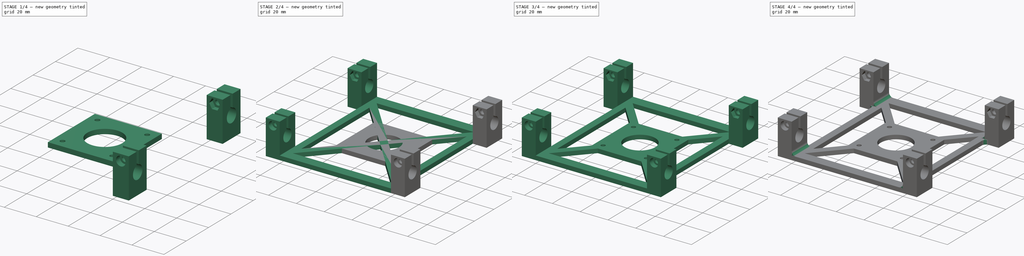
[diagram: build sequence overview — one tinted view per stage of 4, left to right]
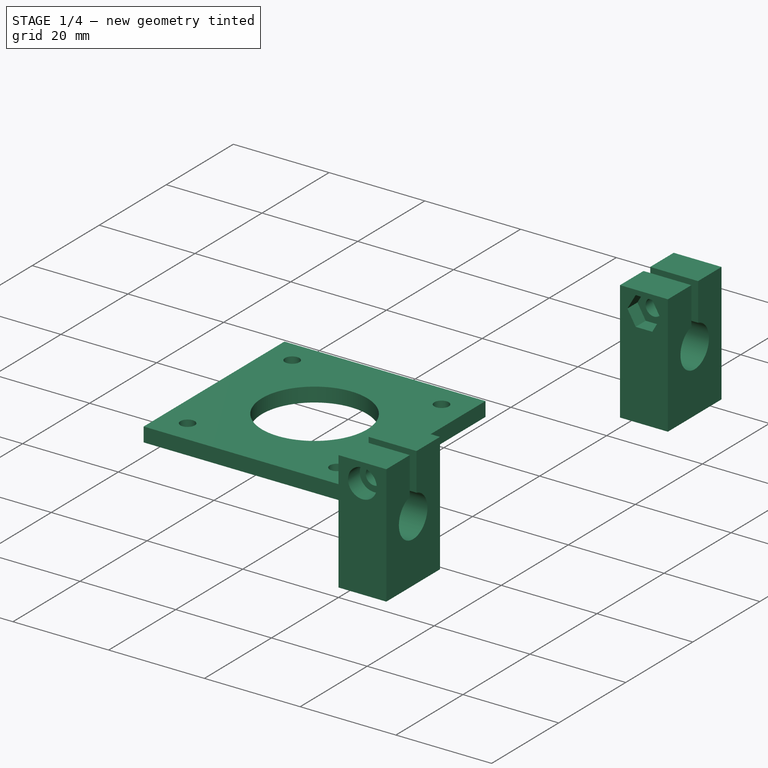
[diagram: stage 1 of 4 — iso view after this stage's code; geometry added in this stage tinted green]
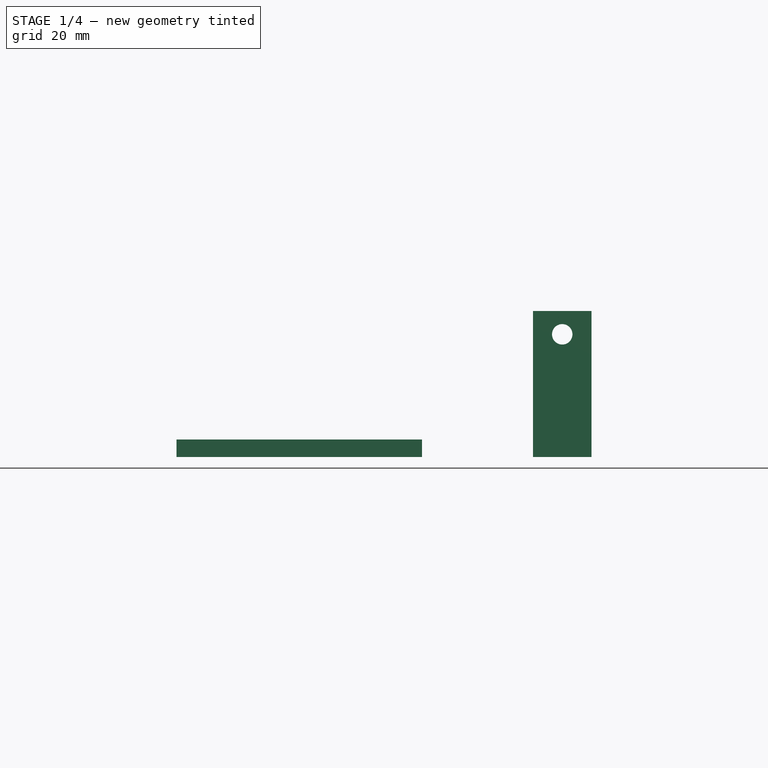
[diagram: stage 1 of 4 — front view after this stage's code; geometry added in this stage tinted green]
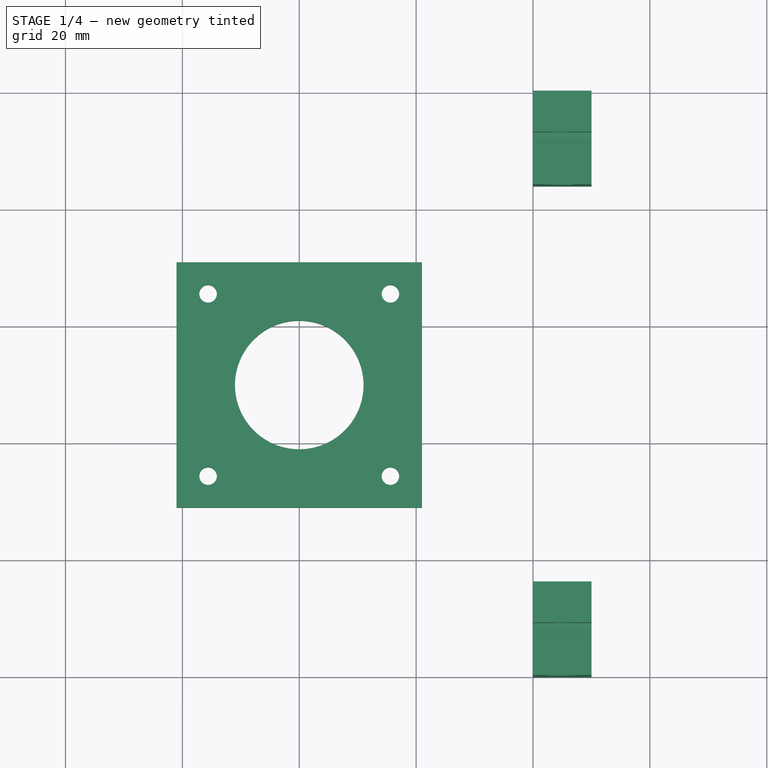
[diagram: stage 1 of 4 — top view after this stage's code; geometry added in this stage tinted green]
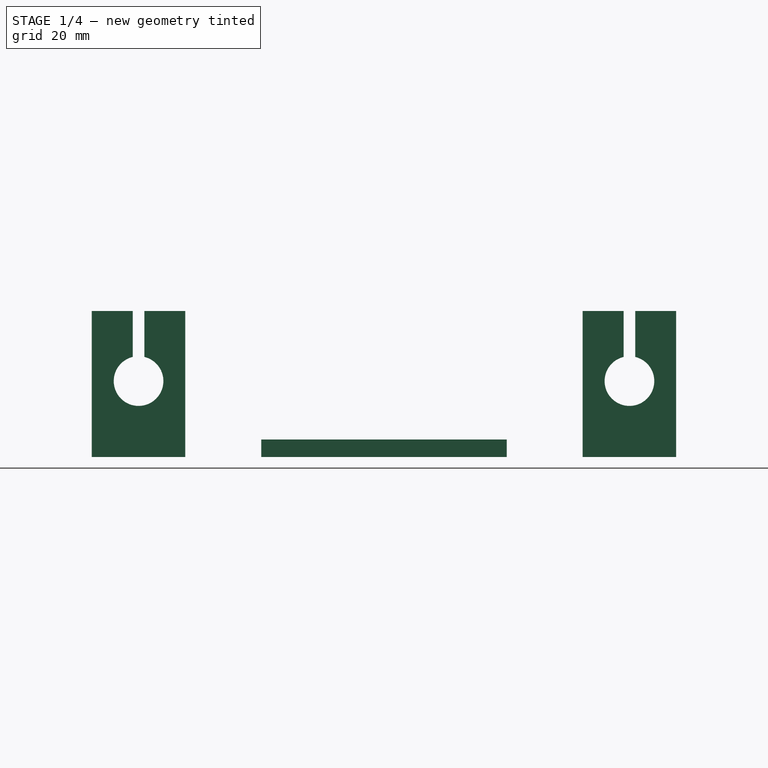
[diagram: stage 1 of 4 — right view after this stage's code; geometry added in this stage tinted green]
FCSTD DOCUMENT
Label: BackPlate2
objects: PartDesign::Pocket×4, PartDesign::Pad×3, Sketcher::SketchObject×2, Part::MultiFuse×2, Part::Fillet×2, Part::Cut×1
note: 17 computed .brp shape members not serialized (recipe doc carries the construction recipe); baked Part::Feature solids carry a one-line shape summary decoded from their .brp

FEATURE [PartDesign::Pocket] Pocket002  label="Clamp003"
  Length = 3
  Placement = pos=(80,16,0) rot=(0.707107,0,0.707107;3.14159rad)
  Type = 0
FEATURE [PartDesign::Pocket] Pocket003  label="Clamp004"
  Length = 3
  Placement = pos=(90,84,0) rot=(0,-1,0;1.5708rad)
  Type = 0
FEATURE [PartDesign::Pad] Pad
  Length = 3
  MirroredExtent = false
  Placement = pos=(40,50,0) rot=(0,0,1;0rad)
  Sketch = -> Sketch
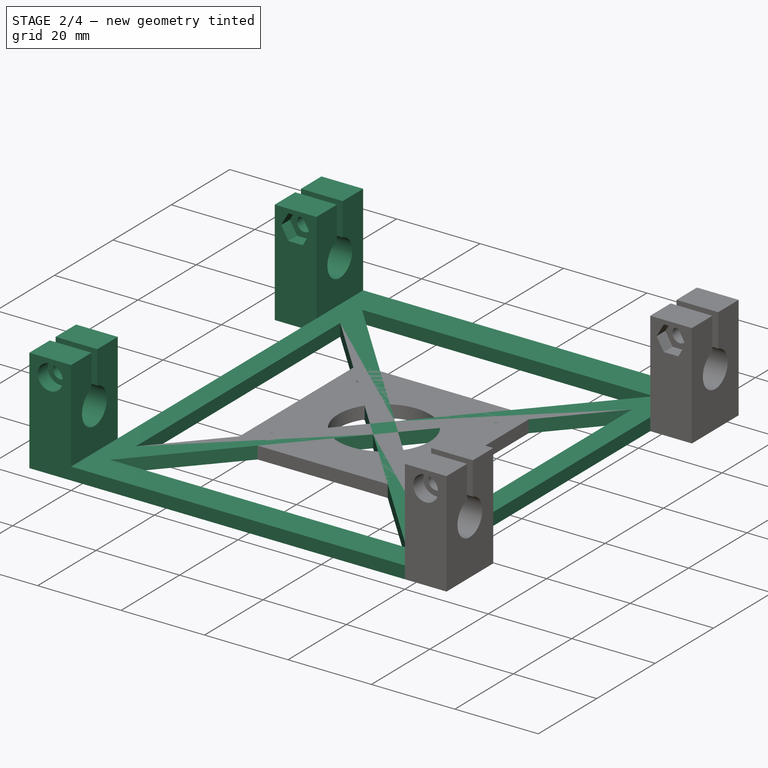
[diagram: stage 2 of 4 — iso view after this stage's code; geometry added in this stage tinted green]
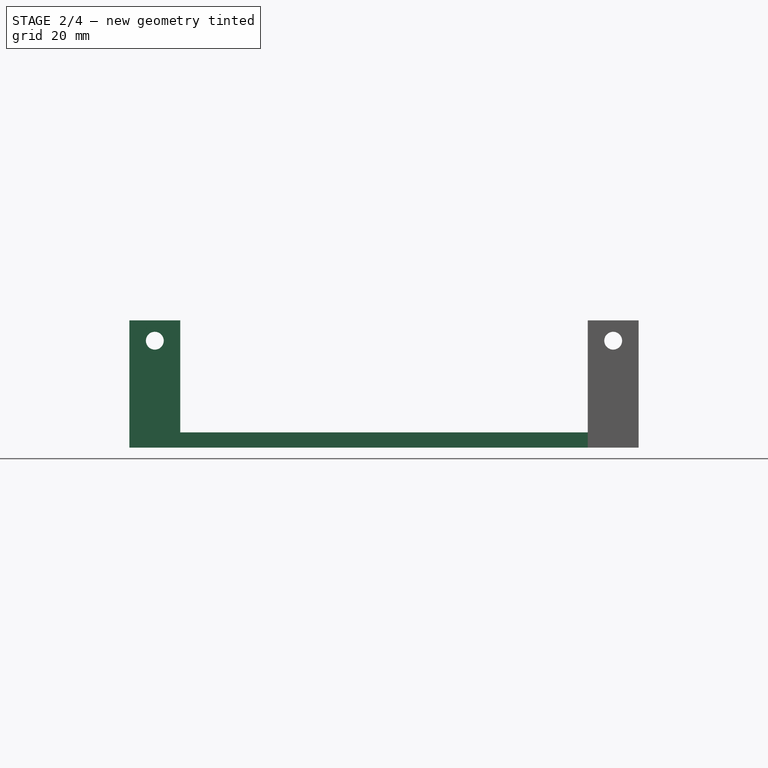
[diagram: stage 2 of 4 — front view after this stage's code; geometry added in this stage tinted green]
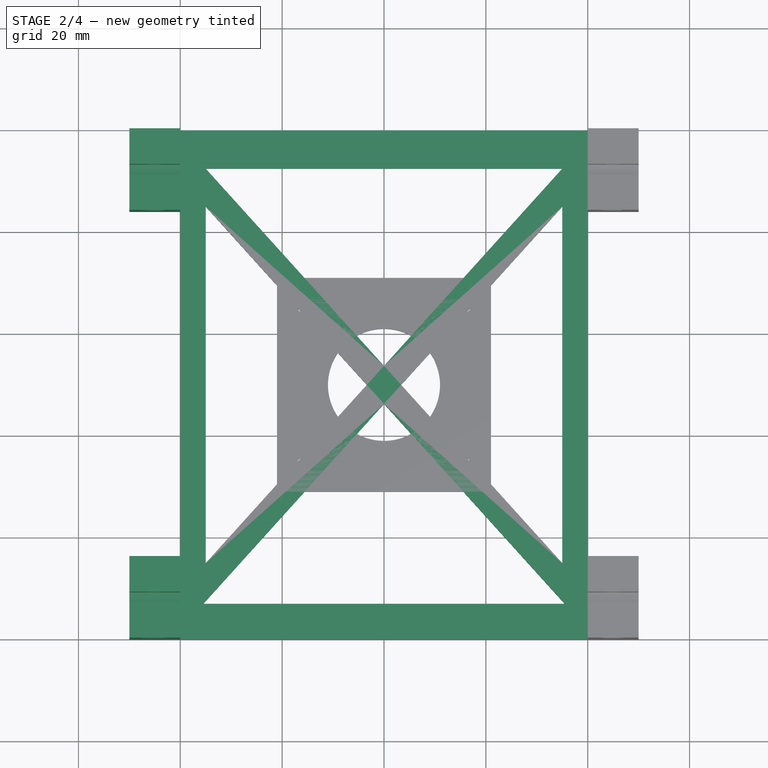
[diagram: stage 2 of 4 — top view after this stage's code; geometry added in this stage tinted green]
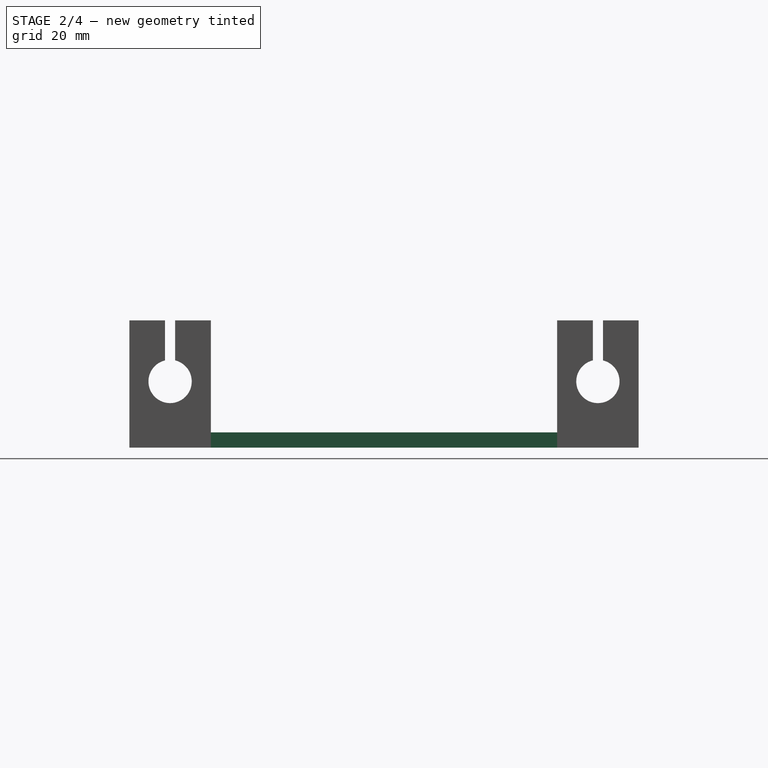
[diagram: stage 2 of 4 — right view after this stage's code; geometry added in this stage tinted green]
FEATURE [PartDesign::Pad] Pad005
  Length = 3
  MirroredExtent = false
  Sketch = -> Sketch
FEATURE [PartDesign::Pocket] Pocket  label="Clamp1"
  Length = 3
  Placement = pos=(0,84,0) rot=(0,-1,0;1.5708rad)
  Type = 0
FEATURE [PartDesign::Pocket] Pocket001  label="Clamp002"
  Length = 3
  Placement = pos=(-10,16,0) rot=(0.707107,0,0.707107;3.14159rad)
  Type = 0
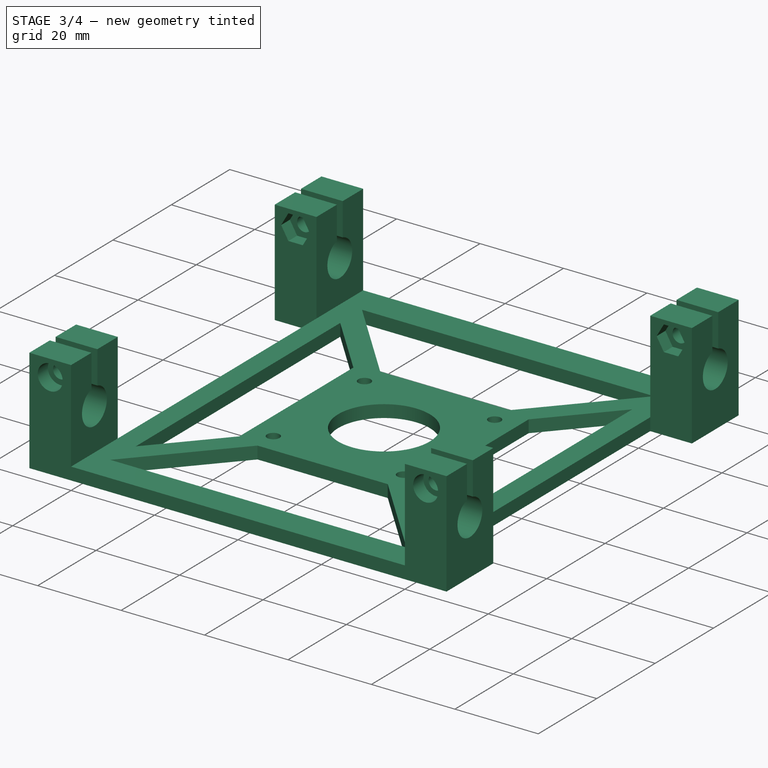
[diagram: stage 3 of 4 — iso view after this stage's code; geometry added in this stage tinted green]
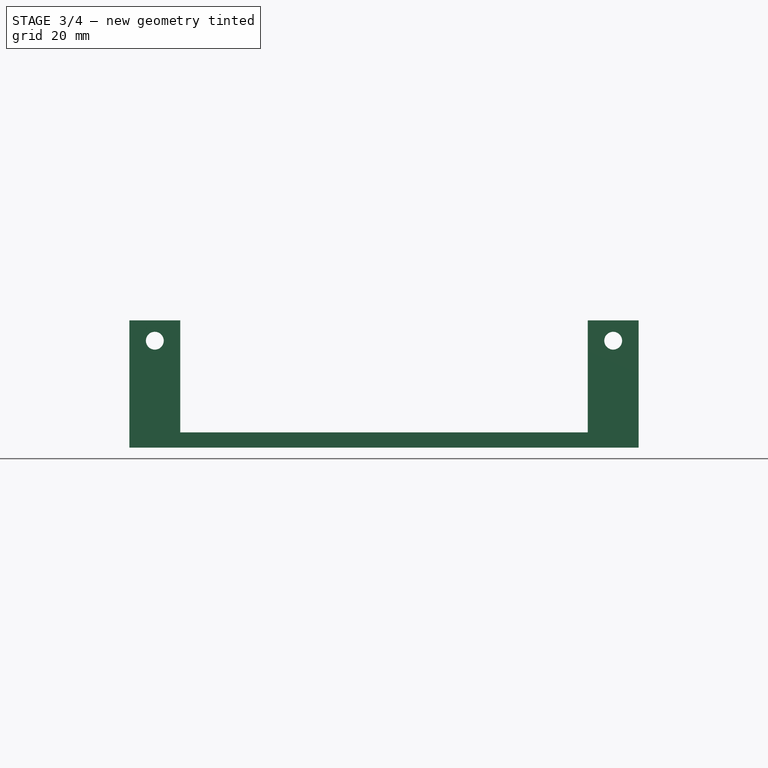
[diagram: stage 3 of 4 — front view after this stage's code; geometry added in this stage tinted green]
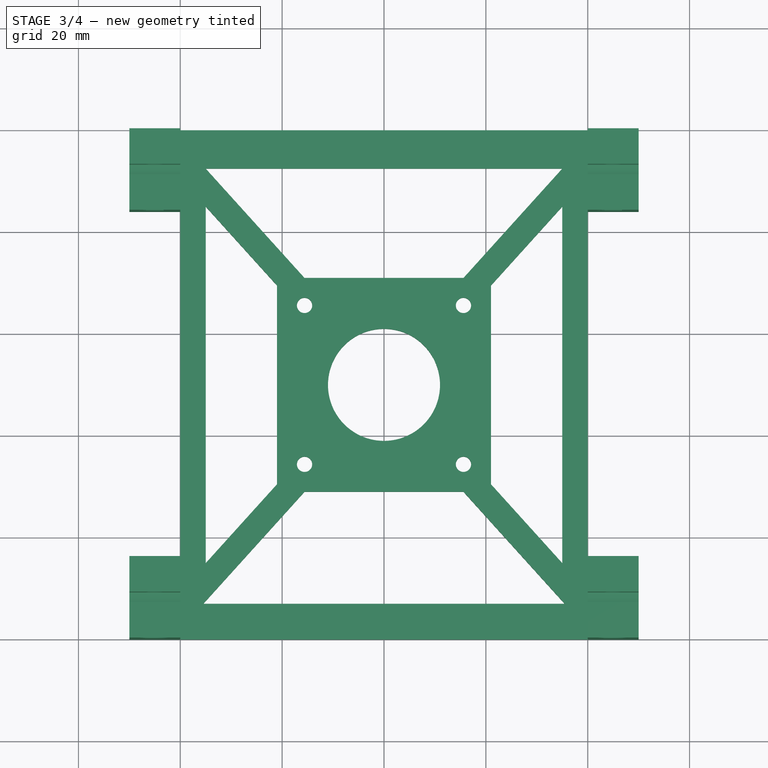
[diagram: stage 3 of 4 — top view after this stage's code; geometry added in this stage tinted green]
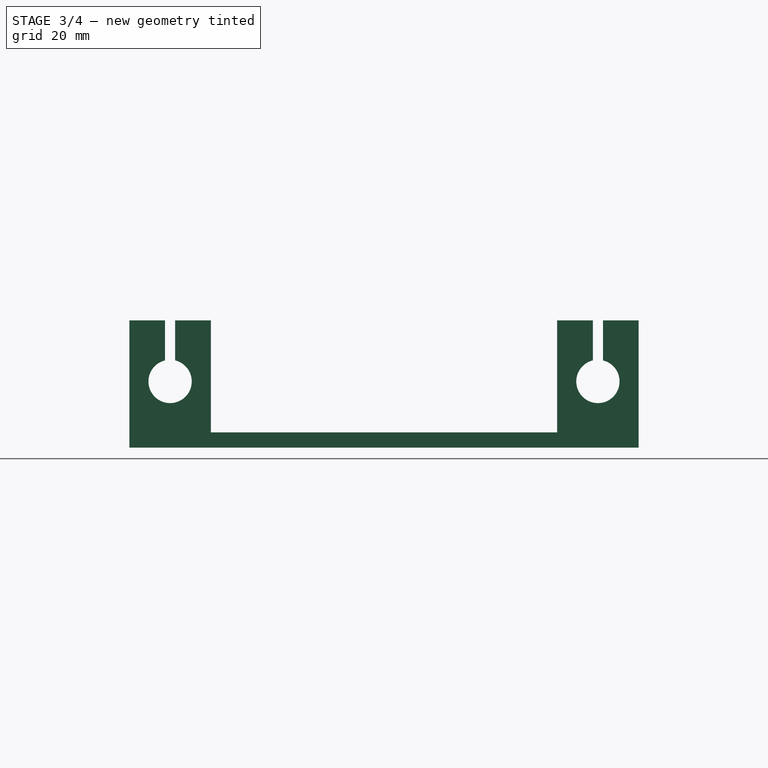
[diagram: stage 3 of 4 — right view after this stage's code; geometry added in this stage tinted green]
FEATURE [Sketcher::SketchObject] Sketch
  sketch-geometry (23):
    g0: LineSegment StartX=0 StartY=0 StartZ=0 EndX=0 EndY=100 EndZ=0
    g1: LineSegment StartX=0 StartY=100 StartZ=0 EndX=80 EndY=100 EndZ=0
    g2: LineSegment StartX=80 StartY=100 StartZ=0 EndX=80 EndY=0 EndZ=0
    g3: LineSegment StartX=80 StartY=0 StartZ=0 EndX=0 EndY=0 EndZ=0
    g4: LineSegment StartX=5 StartY=85 StartZ=0 EndX=36.6304 EndY=50 EndZ=0
    g5: LineSegment StartX=36.6304 StartY=50 StartZ=0 EndX=5 EndY=15 EndZ=0
    g6: LineSegment StartX=5 StartY=15 StartZ=0 EndX=5 EndY=85 EndZ=0
    g7: LineSegment StartX=5 StartY=92.4572 StartZ=0 EndX=40 EndY=53.7286 EndZ=0
    g8: LineSegment StartX=40 StartY=53.7286 StartZ=0 EndX=75 EndY=92.4572 EndZ=0
    g9: LineSegment StartX=75 StartY=92.4572 StartZ=0 EndX=5 EndY=92.4572 EndZ=0
    g10: LineSegment StartX=75 StartY=85 StartZ=0 EndX=75 EndY=15 EndZ=0
    g11: LineSegment StartX=75 StartY=15 StartZ=0 EndX=43.3696 EndY=50 EndZ=0
    g12: LineSegment StartX=43.3696 StartY=50 StartZ=0 EndX=75 EndY=85 EndZ=0
    g13: LineSegment StartX=75.4905 StartY=7 StartZ=0 EndX=40 EndY=46.2714 EndZ=0
    g14: LineSegment StartX=40 StartY=46.2714 StartZ=0 EndX=4.50949 EndY=7 EndZ=0
    g15: LineSegment StartX=4.50949 StartY=7 StartZ=0 EndX=75.4905 EndY=7 EndZ=0
    g16: LineSegment [constr] StartX=36.6304 StartY=50 StartZ=0 EndX=40 EndY=53.7286 EndZ=0
    g17: LineSegment [constr] StartX=36.6304 StartY=50 StartZ=0 EndX=40 EndY=46.2714 EndZ=0
    g18: LineSegment [constr] StartX=40 StartY=53.7286 StartZ=0 EndX=43.3696 EndY=50 EndZ=0
    g19: LineSegment [constr] StartX=75 StartY=92.4572 StartZ=0 EndX=89.0744 EndY=108.031 EndZ=0
    g20: LineSegment [constr] StartX=89.0744 StartY=108.031 StartZ=0 EndX=92.7839 EndY=104.679 EndZ=0
    g21: LineSegment [constr] StartX=92.7839 StartY=104.679 StartZ=0 EndX=75 EndY=85 EndZ=0
    g22: LineSegment [constr] StartX=75 StartY=92.4572 StartZ=0 EndX=75 EndY=85 EndZ=0
  constraints (64):
    c: Vertical(g0)
    c: Coincident(g0,g1)
    c: Horizontal(g1)
    c: Coincident(g1,g2)
    c: Vertical(g2)
    c: Coincident(g2,g3)
    c: Horizontal(g3)
    c: Coincident(g3,g0)
    c: DistanceX(g0) = 0
    c: DistanceY(g0) = 0
    c: DistanceY(g0) = 100
    c: DistanceX(g3) = -80
    c: Coincident(g4,g5)
    c: Coincident(g5,g6)
    c: Vertical(g6)
    c: Coincident(g6,g4)
    c: DistanceX(g0,g5) = 5
    c: Coincident(g7,g8)
    c: Coincident(g8,g9)
    c: Coincident(g9,g7)
    c: Horizontal(g9)
    c: Vertical(g10)
    c: Coincident(g10,g11)
    c: Coincident(g11,g12)
    c: Coincident(g12,g10)
    c: DistanceX(g10,g1) = 5
    c: Coincident(g13,g14)
    c: Coincident(g14,g15)
    c: Horizontal(g15)
    c: Coincident(g13,g15)
    c: DistanceY(g13,g2) = -7
    c: DistanceY(g4) = 50
    c: DistanceY(g11) = 50
    c: DistanceX(g7) = 40
    c: DistanceX(g13) = 40
    c: Distance(g6) = 70
    c: Parallel(g4,g7)
    c: Parallel(g7,g13)
    c: Parallel(g13,g11)
    c: Parallel(g14,g5)
    c: Parallel(g5,g8)
    c: Parallel(g8,g12)
    c: Coincident(g7,g16)
    c: Coincident(g16,g4)
    c: Coincident(g4,g17)
    c: Coincident(g17,g13)
    c: Parallel(g4,g17)
    c: Parallel(g16,g8)
    c: Coincident(g11,g18)
    c: Coincident(g18,g7)
    c: Parallel(g18,g7)
    c: Coincident(g19,g20)
    c: Coincident(g20,g21)
    c: Coincident(g21,g10)
    c: Coincident(g19,g8)
    c: Parallel(g19,g8)
    c: Parallel(g19,g21)
    c: Perpendicular(g19,g20)
    c: Equal(g17,g18)
    c: Distance(g20) = 5
    c: Distance(g21) = 26.5238
    c: Vertical(g22)
    c: Coincident(g22,g10)
    c: Coincident(g22,g8)
FEATURE [Sketcher::SketchObject] Sketch004
  sketch-geometry (5):
    g0: LineSegment StartX=19 StartY=71 StartZ=0 EndX=61 EndY=71 EndZ=0
    g1: LineSegment StartX=61 StartY=71 StartZ=0 EndX=61 EndY=29 EndZ=0
    g2: LineSegment StartX=19 StartY=29 StartZ=0 EndX=19 EndY=71 EndZ=0
    g3: LineSegment StartX=19 StartY=29 StartZ=0 EndX=40 EndY=29 EndZ=0
    g4: LineSegment StartX=40 StartY=29 StartZ=0 EndX=61 EndY=29 EndZ=0
  constraints (15):
    c: Coincident(g0,g1)
    c: Coincident(g2,g0)
    c: Horizontal(g0)
    c: Vertical(g1)
    c: Vertical(g2)
    c: Horizontal(g3)
    c: Coincident(g3,g4)
    c: Horizontal(g4)
    c: Equal(g4,g3)
    c: Coincident(g1,g4)
    c: Coincident(g3,g2)
    c: Equal(g0,g1)
    c: DistanceX(g0) = 42
    c: DistanceX(g3) = 40
    c: DistanceY(g3) = 29
FEATURE [PartDesign::Pad] Pad004
  Length = 10
  MirroredExtent = false
  Sketch = -> Sketch004
FEATURE [Part::MultiFuse] Fusion
  Shapes = -> [Pocket,Pocket002,Pocket001,Pocket003,Pad005]
FEATURE [Part::Cut] Cut
  Base = -> Fusion
  Tool = -> Pad004
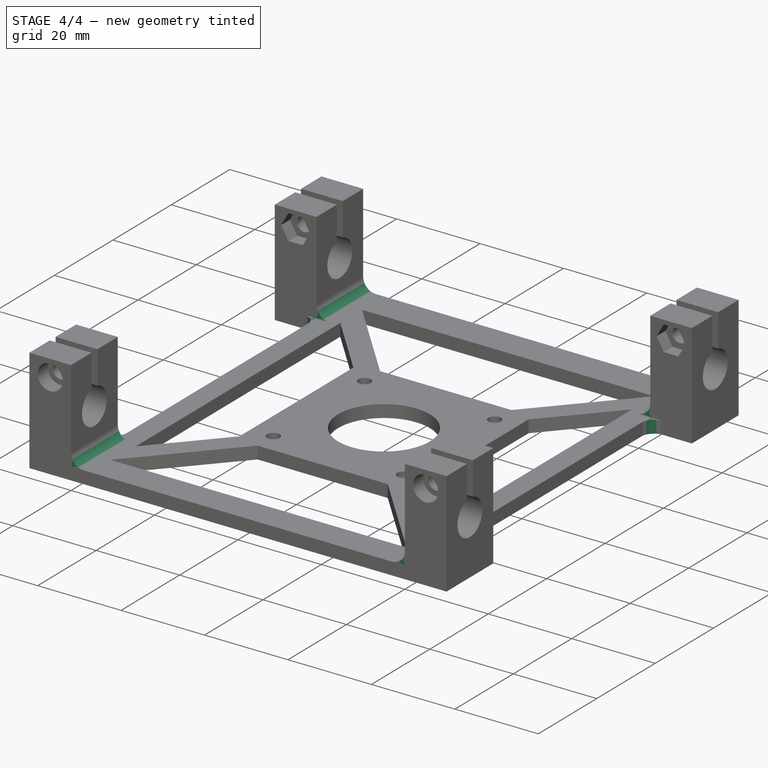
[diagram: stage 4 of 4 — iso view after this stage's code; geometry added in this stage tinted green]
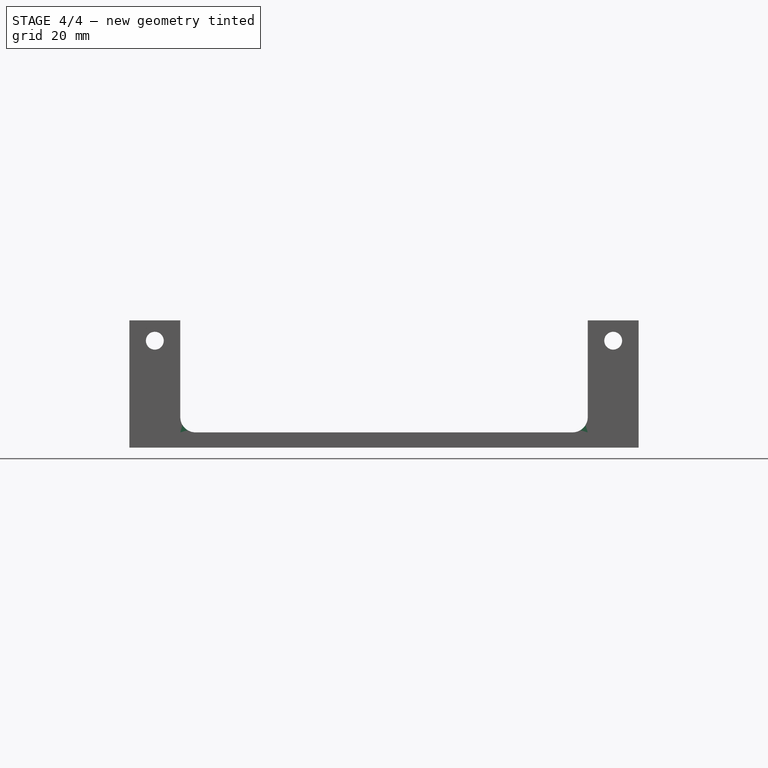
[diagram: stage 4 of 4 — front view after this stage's code; geometry added in this stage tinted green]
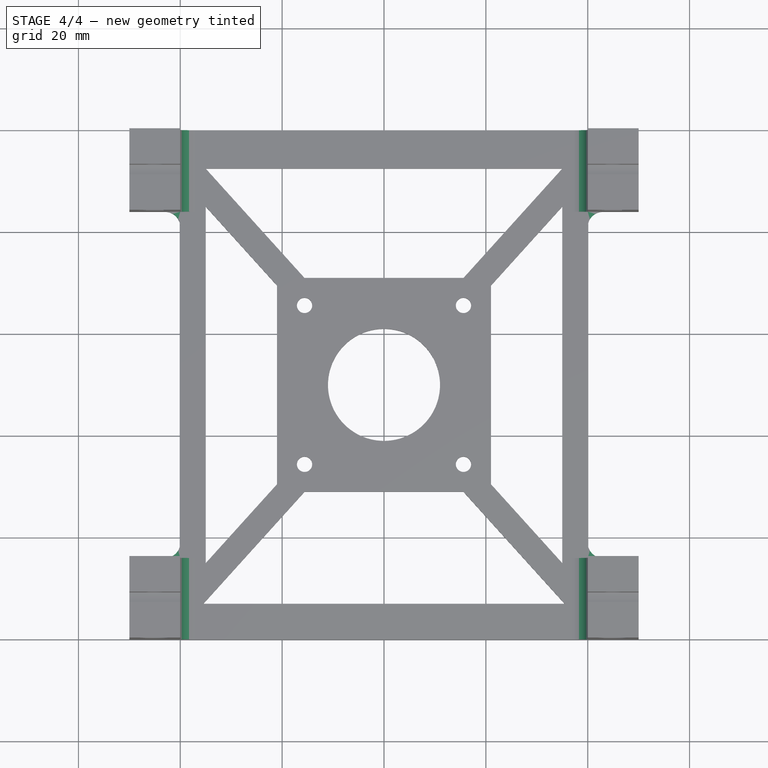
[diagram: stage 4 of 4 — top view after this stage's code; geometry added in this stage tinted green]
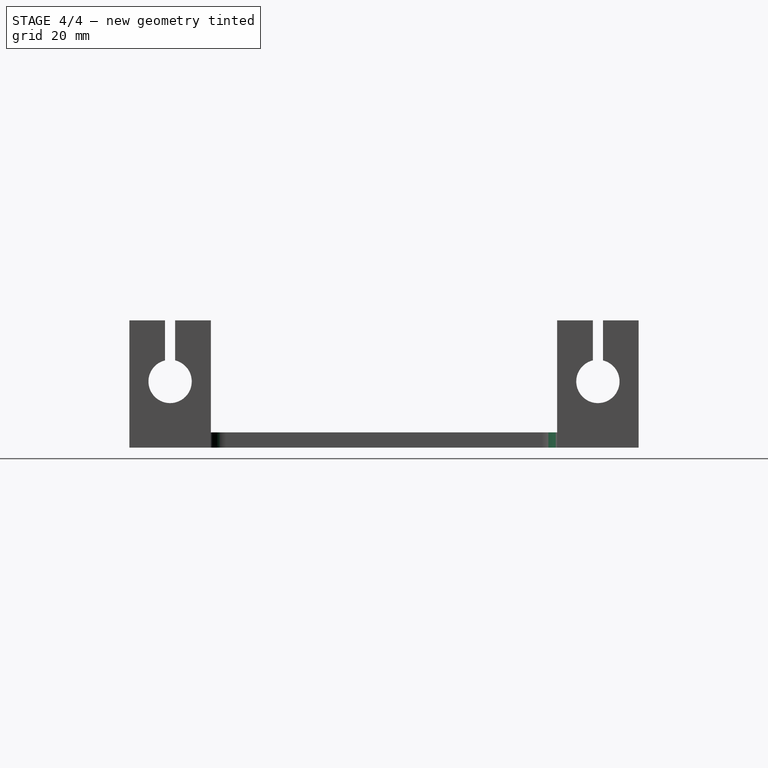
[diagram: stage 4 of 4 — right view after this stage's code; geometry added in this stage tinted green]
FEATURE [Part::MultiFuse] Fusion001
  Shapes = -> [Pad,Cut]
FEATURE [Part::Fillet] Fillet
  Base = -> Fusion001
  Edges = 4 edges r=3: [Edge70,Edge151,Edge152,Edge153]
FEATURE [Part::Fillet] Fillet001
  Base = -> Fillet
  Edges = 4 edges r=10: [Edge44,Edge133,Edge169,Edge187]
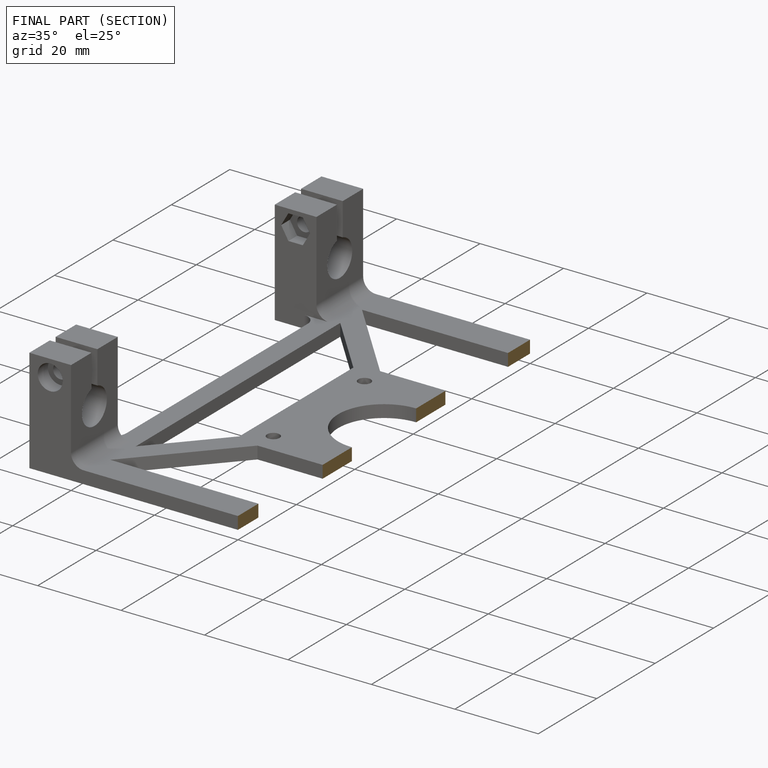
[diagram: finished part — half-section view (interior)]
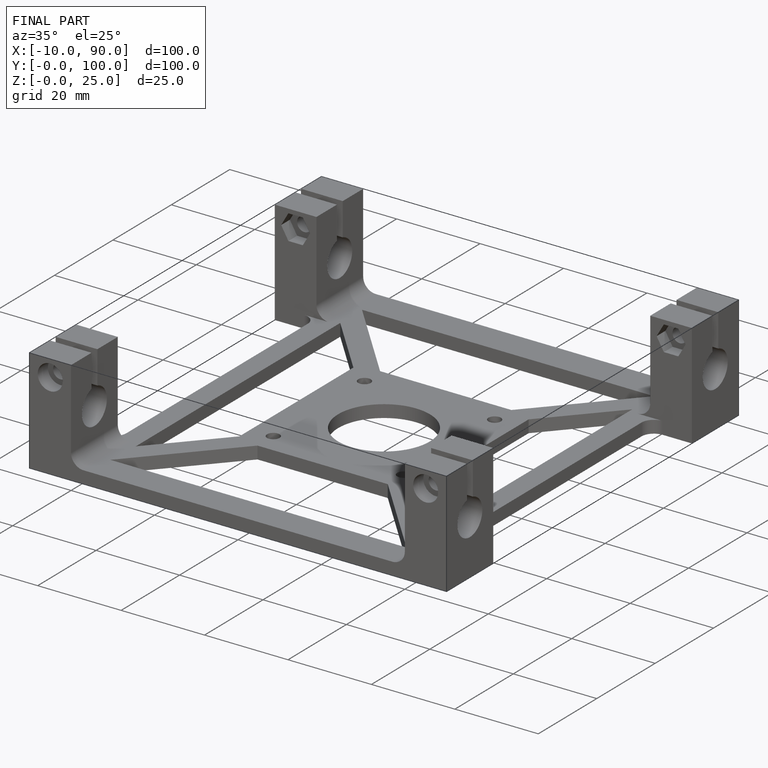
[diagram: finished part — iso view with bounding-box wireframe]
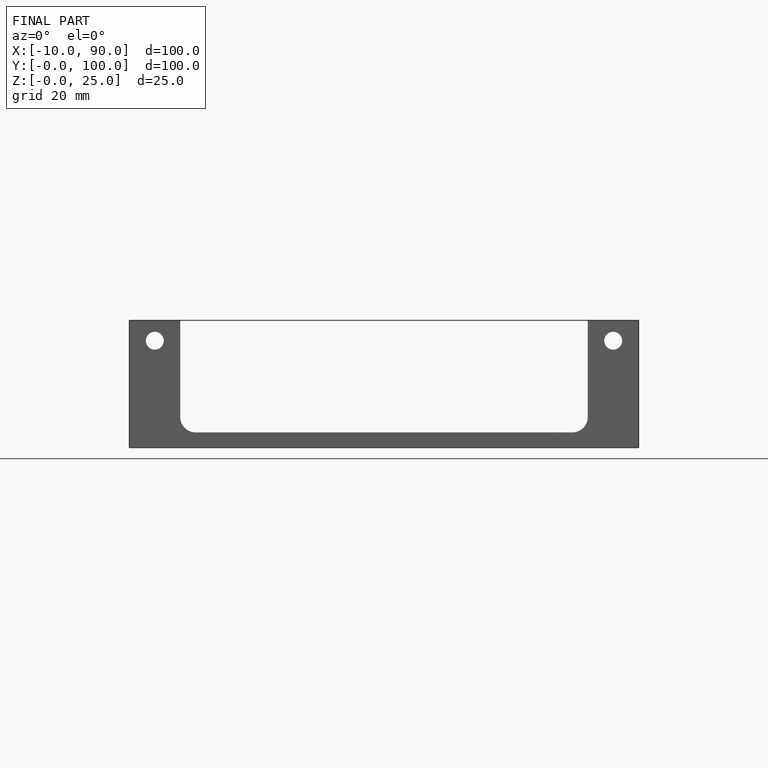
[diagram: finished part — front view with bounding-box wireframe]
